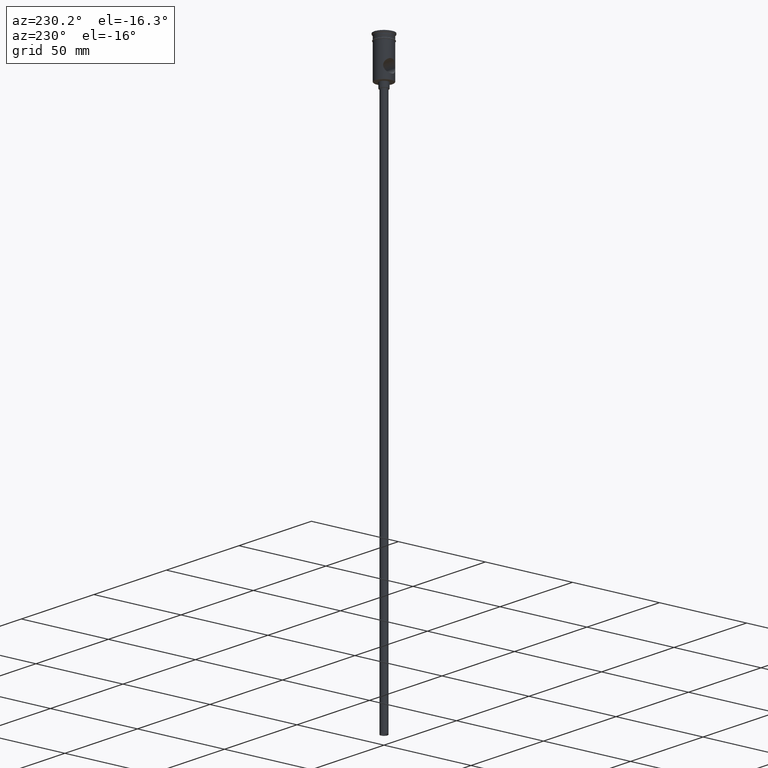
[diagram: clean part render]
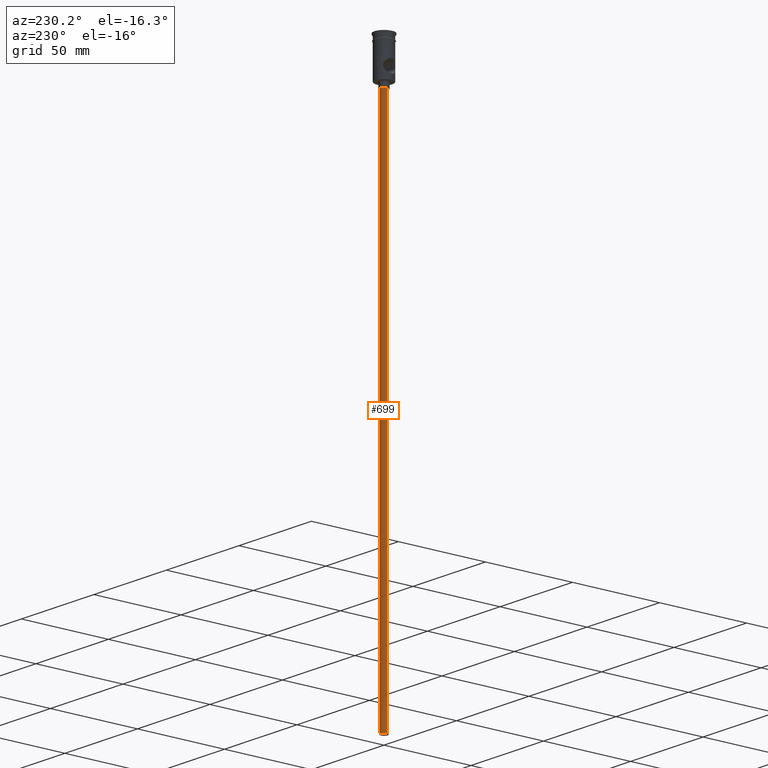
[diagram: same view with one face highlighted and labeled with its STEP entity id]
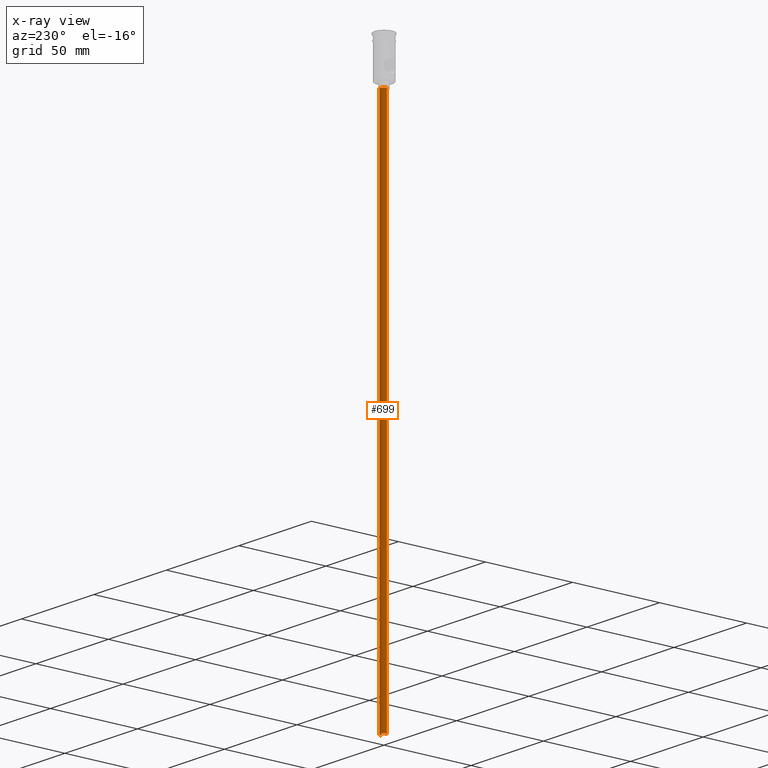
[diagram: x-ray of the same camera — body ghosted, the highlighted face saturated]
A machine part, auxiliary view. The second image highlights one B-rep face of the part: STEP entity #699.
The next image is the same camera in x-ray: the body ghosted, the highlighted face saturated — about 0% of this face is hidden behind the body in this view.
In plain terms, the highlighted cylindrical surface (edge-blend (fillet) strip) has radius 2 mm, axis along (-0, -0, 1).
Its self-contained STEP definition (entity closure, byte-faithful):
#19 = VERTEX_POINT ( 'NONE', #448 ) ;
#111 = DIRECTION ( 'NONE',  ( 1.000000000000000000, 0.000000000000000000, 0.000000000000000000 ) ) ;
#130 = CIRCLE ( 'NONE', #890, 2.000000000000000000 ) ;
#153 = DIRECTION ( 'NONE',  ( -1.000000000000000000, 0.000000000000000000, 0.000000000000000000 ) ) ;
#177 = VECTOR ( 'NONE', #566, 1000.000000000000000 ) ;
#262 = CARTESIAN_POINT ( 'NONE',  ( -2.000000000000000000, 2.449293598294706414E-16, -25.50000000000000000 ) ) ;
#300 = EDGE_CURVE ( 'NONE', #862, #19, #995, .T. ) ;
#324 = VERTEX_POINT ( 'NONE', #705 ) ;
#369 = CARTESIAN_POINT ( 'NONE',  ( 0.000000000000000000, 0.000000000000000000, -322.5000000000000000 ) ) ;
#445 = CARTESIAN_POINT ( 'NONE',  ( -2.000000000000000000, 2.449293598294706414E-16, -322.5000000000000000 ) ) ;
#448 = CARTESIAN_POINT ( 'NONE',  ( 2.000000000000000000, 0.000000000000000000, -25.50000000000000000 ) ) ;
#566 = DIRECTION ( 'NONE',  ( -0.000000000000000000, -0.000000000000000000, 1.000000000000000000 ) ) ;
#589 = VECTOR ( 'NONE', #1226, 1000.000000000000000 ) ;
#599 = DIRECTION ( 'NONE',  ( 0.000000000000000000, 0.000000000000000000, -1.000000000000000000 ) ) ;
#651 = EDGE_LOOP ( 'NONE', ( #1444, #764, #930, #1132 ) ) ;
#672 = DIRECTION ( 'NONE',  ( 0.000000000000000000, 0.000000000000000000, -1.000000000000000000 ) ) ;
#678 = DIRECTION ( 'NONE',  ( -1.000000000000000000, 0.000000000000000000, 0.000000000000000000 ) ) ;
#699 = ADVANCED_FACE ( 'NONE', ( #1133 ), #1120, .T. ) ;
#705 = CARTESIAN_POINT ( 'NONE',  ( -2.000000000000000000, 2.449293598294706414E-16, -322.5000000000000000 ) ) ;
#764 = ORIENTED_EDGE ( 'NONE', *, *, #789, .T. ) ;
#779 = AXIS2_PLACEMENT_3D ( 'NONE', #814, #1007, #111 ) ;
#780 = CARTESIAN_POINT ( 'NONE',  ( 2.000000000000000000, 0.000000000000000000, -322.5000000000000000 ) ) ;
#787 = CARTESIAN_POINT ( 'NONE',  ( 0.000000000000000000, 0.000000000000000000, -25.50000000000000000 ) ) ;
#789 = EDGE_CURVE ( 'NONE', #324, #948, #887, .T. ) ;
#814 = CARTESIAN_POINT ( 'NONE',  ( 0.000000000000000000, 0.000000000000000000, -322.5000000000000000 ) ) ;
#862 = VERTEX_POINT ( 'NONE', #1046 ) ;
#887 = LINE ( 'NONE', #445, #177 ) ;
#890 = AXIS2_PLACEMENT_3D ( 'NONE', #787, #672, #678 ) ;
#930 = ORIENTED_EDGE ( 'NONE', *, *, #1301, .T. ) ;
#948 = VERTEX_POINT ( 'NONE', #262 ) ;
#972 = EDGE_CURVE ( 'NONE', #324, #862, #1222, .T. ) ;
#995 = LINE ( 'NONE', #780, #589 ) ;
#1007 = DIRECTION ( 'NONE',  ( -0.000000000000000000, -0.000000000000000000, 1.000000000000000000 ) ) ;
#1046 = CARTESIAN_POINT ( 'NONE',  ( 2.000000000000000000, 0.000000000000000000, -322.5000000000000000 ) ) ;
#1120 = CYLINDRICAL_SURFACE ( 'NONE', #779, 2.000000000000000000 ) ;
#1132 = ORIENTED_EDGE ( 'NONE', *, *, #300, .F. ) ;
#1133 = FACE_OUTER_BOUND ( 'NONE', #651, .T. ) ;
#1222 = CIRCLE ( 'NONE', #1243, 2.000000000000000000 ) ;
#1226 = DIRECTION ( 'NONE',  ( -0.000000000000000000, -0.000000000000000000, 1.000000000000000000 ) ) ;
#1243 = AXIS2_PLACEMENT_3D ( 'NONE', #369, #599, #153 ) ;
#1301 = EDGE_CURVE ( 'NONE', #948, #19, #130, .T. ) ;
#1444 = ORIENTED_EDGE ( 'NONE', *, *, #972, .F. ) ;